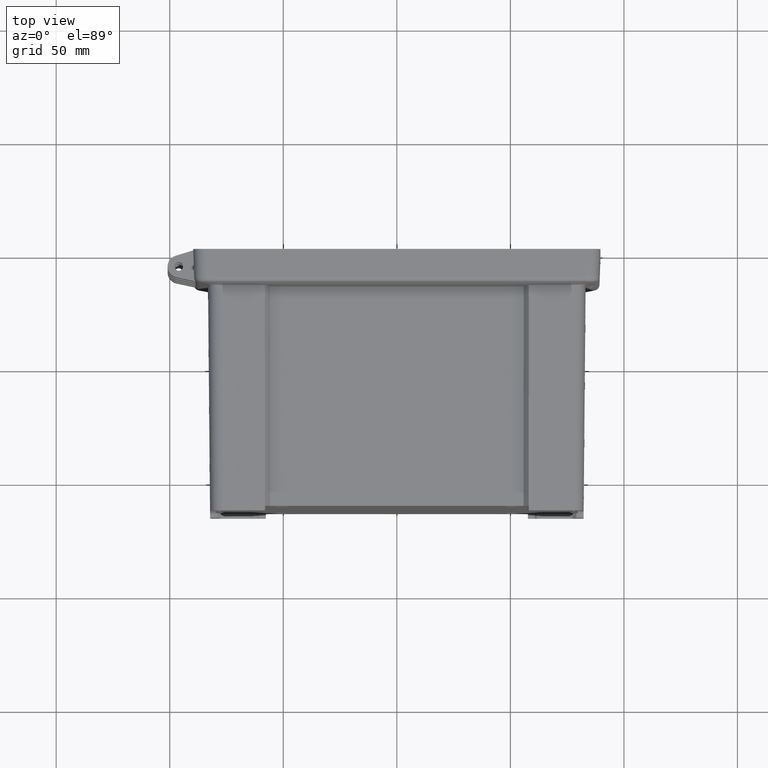
[diagram: clean part render]
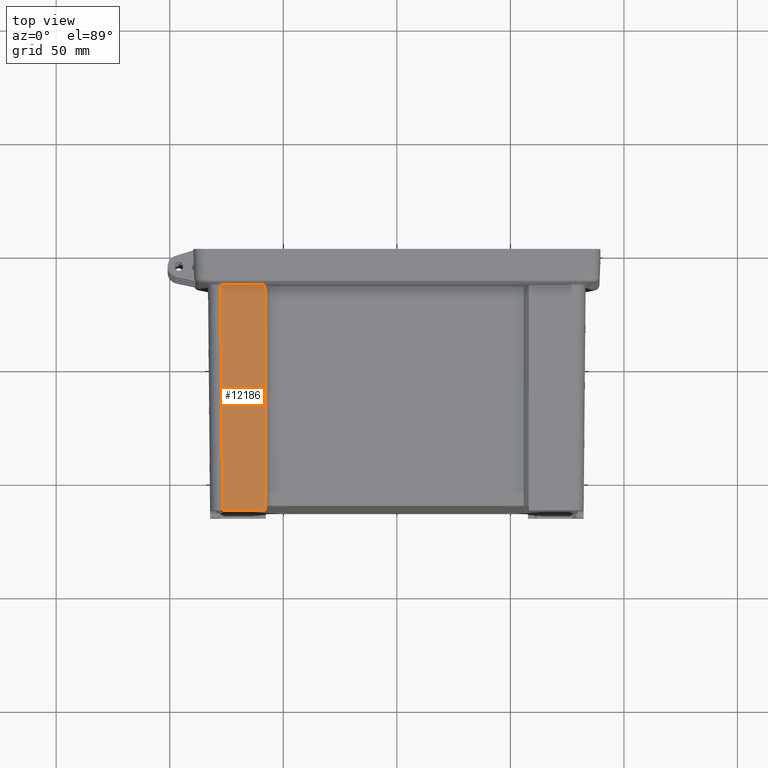
[diagram: same view with one face highlighted and labeled with its STEP entity id]
A machine part, top view. The second image highlights one B-rep face of the part: STEP entity #12186.
In plain terms, the highlighted planar face has unit normal (0, -0.0087, 1).
Its self-contained STEP definition (entity closure, byte-faithful):
#63 = FACE_OUTER_BOUND ( 'NONE', #2747, .T. ) ;
#555 = LINE ( 'NONE', #11893, #7526 ) ;
#971 = DIRECTION ( 'NONE',  ( 0.007857165312980517500, 0.9999310562397356600, 0.008726266127677982700 ) ) ;
#1058 = VECTOR ( 'NONE', #971, 1000.000000000000000 ) ;
#1190 = ORIENTED_EDGE ( 'NONE', *, *, #8925, .F. ) ;
#1794 = CARTESIAN_POINT ( 'NONE',  ( -58.10953762954196100, -15.71341567776971400, 107.8461564750249800 ) ) ;
#1947 = CARTESIAN_POINT ( 'NONE',  ( -58.11098492678780000, -14.13551696305048500, 107.8599265884955500 ) ) ;
#2162 = PLANE ( 'NONE',  #11122 ) ;
#2565 = VECTOR ( 'NONE', #14833, 1000.000000000000000 ) ;
#2747 = EDGE_LOOP ( 'NONE', ( #1190, #3116, #5443, #14749, #14089, #5544 ) ) ;
#2898 = DIRECTION ( 'NONE',  ( 0.008726203243944222500, -0.9999238504775704900, -0.008726203243944238200 ) ) ;
#3116 = ORIENTED_EDGE ( 'NONE', *, *, #14679, .T. ) ;
#3255 = DIRECTION ( 'NONE',  ( -0.0009171954542809266700, 0.9999615024563481800, 0.008726531827785091400 ) ) ;
#4092 = EDGE_CURVE ( 'NONE', #13754, #13673, #12231, .T. ) ;
#5315 = LINE ( 'NONE', #6688, #2565 ) ;
#5419 = VERTEX_POINT ( 'NONE', #9985 ) ;
#5443 = ORIENTED_EDGE ( 'NONE', *, *, #14341, .T. ) ;
#5544 = ORIENTED_EDGE ( 'NONE', *, *, #4092, .T. ) ;
#5871 = VECTOR ( 'NONE', #3255, 1000.000000000000100 ) ;
#6558 = EDGE_CURVE ( 'NONE', #5419, #13754, #6578, .T. ) ;
#6578 = LINE ( 'NONE', #8974, #1058 ) ;
#6580 = VERTEX_POINT ( 'NONE', #7609 ) ;
#6603 = CARTESIAN_POINT ( 'NONE',  ( -77.59671153124580200, -15.67381005041444000, 107.8465021080986900 ) ) ;
#6688 = CARTESIAN_POINT ( 'NONE',  ( -82.24714931583039900, -115.0000000000000000, 106.9796955802488600 ) ) ;
#7145 =( BOUNDED_CURVE ( )  B_SPLINE_CURVE ( 3, ( #11699, #9166, #15784, #6603 ),
 .UNSPECIFIED., .F., .F. ) 
 B_SPLINE_CURVE_WITH_KNOTS ( ( 4, 4 ),
 ( 4.405368760606517500, 4.459397191892358900 ),
 .UNSPECIFIED. ) 
 CURVE ( )  GEOMETRIC_REPRESENTATION_ITEM ( )  RATIONAL_B_SPLINE_CURVE ( ( 1.000000000000000000, 0.9997567588440701100, 0.9997567588440701100, 1.000000000000000000 ) ) 
 REPRESENTATION_ITEM ( '' )  );
#7526 = VECTOR ( 'NONE', #2898, 1000.000000000000100 ) ;
#7609 = CARTESIAN_POINT ( 'NONE',  ( -76.72990500339594200, -115.0000000000000000, 106.9796955802488600 ) ) ;
#8416 = LINE ( 'NONE', #14708, #11564 ) ;
#8432 = CARTESIAN_POINT ( 'NONE',  ( -77.59671153124580200, -15.67381005041444000, 107.8465021080986900 ) ) ;
#8750 = DIRECTION ( 'NONE',  ( 0.0000000000000000000, -0.9999619230641713100, -0.008726535498373953800 ) ) ;
#8785 = CARTESIAN_POINT ( 'NONE',  ( -75.58649666835447100, -15.71341567776968200, 107.8461564750249800 ) ) ;
#8925 = EDGE_CURVE ( 'NONE', #15527, #13673, #8416, .T. ) ;
#8974 = CARTESIAN_POINT ( 'NONE',  ( -58.02179902680623500, -113.1903412097758800, 106.9954882332575200 ) ) ;
#9166 = CARTESIAN_POINT ( 'NONE',  ( -76.25417917563802900, -15.71341567776968200, 107.8461564750249700 ) ) ;
#9985 = CARTESIAN_POINT ( 'NONE',  ( -58.03601879544543600, -115.0000000000000000, 106.9796955802488600 ) ) ;
#10420 = CARTESIAN_POINT ( 'NONE',  ( -58.02030338133973000, -113.0000000000000000, 106.9971493158303700 ) ) ;
#11122 = AXIS2_PLACEMENT_3D ( 'NONE', #14330, #15473, #8750 ) ;
#11564 = VECTOR ( 'NONE', #11884, 1000.000000000000000 ) ;
#11699 = CARTESIAN_POINT ( 'NONE',  ( -75.58649666835447100, -15.71341567776968200, 107.8461564750249800 ) ) ;
#11884 = DIRECTION ( 'NONE',  ( 1.000000000000000000, 0.0000000000000000000, 0.0000000000000000000 ) ) ;
#11893 = CARTESIAN_POINT ( 'NONE',  ( -77.59858256765929200, -15.45941051344908600, 107.8483731445121900 ) ) ;
#12186 = ADVANCED_FACE ( 'NONE', ( #63 ), #2162, .T. ) ;
#12231 = LINE ( 'NONE', #1947, #5871 ) ;
#12925 = EDGE_CURVE ( 'NONE', #6580, #5419, #5315, .T. ) ;
#13486 = VERTEX_POINT ( 'NONE', #8432 ) ;
#13673 = VERTEX_POINT ( 'NONE', #1794 ) ;
#13754 = VERTEX_POINT ( 'NONE', #10420 ) ;
#14089 = ORIENTED_EDGE ( 'NONE', *, *, #6558, .T. ) ;
#14330 = CARTESIAN_POINT ( 'NONE',  ( 89.64603423559731300, -14.00000000000000200, 107.8611092271155100 ) ) ;
#14341 = EDGE_CURVE ( 'NONE', #13486, #6580, #555, .T. ) ;
#14679 = EDGE_CURVE ( 'NONE', #15527, #13486, #7145, .T. ) ;
#14708 = CARTESIAN_POINT ( 'NONE',  ( 89.64603423559731300, -15.71341567776968200, 107.8461564750249800 ) ) ;
#14749 = ORIENTED_EDGE ( 'NONE', *, *, #12925, .T. ) ;
#14833 = DIRECTION ( 'NONE',  ( 1.000000000000000000, 0.0000000000000000000, 0.0000000000000000000 ) ) ;
#15473 = DIRECTION ( 'NONE',  ( 0.0000000000000000000, -0.008726535498373953800, 0.9999619230641713100 ) ) ;
#15527 = VERTEX_POINT ( 'NONE', #8785 ) ;
#15784 = CARTESIAN_POINT ( 'NONE',  ( -76.92441382525271400, -15.70021058996378500, 107.8462717140804300 ) ) ;